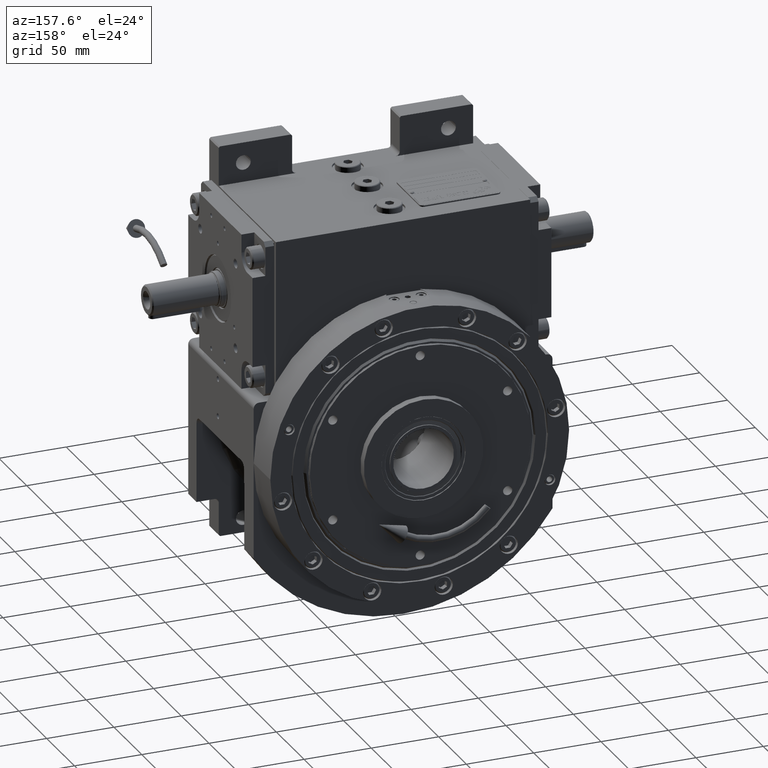
[diagram: clean part render]
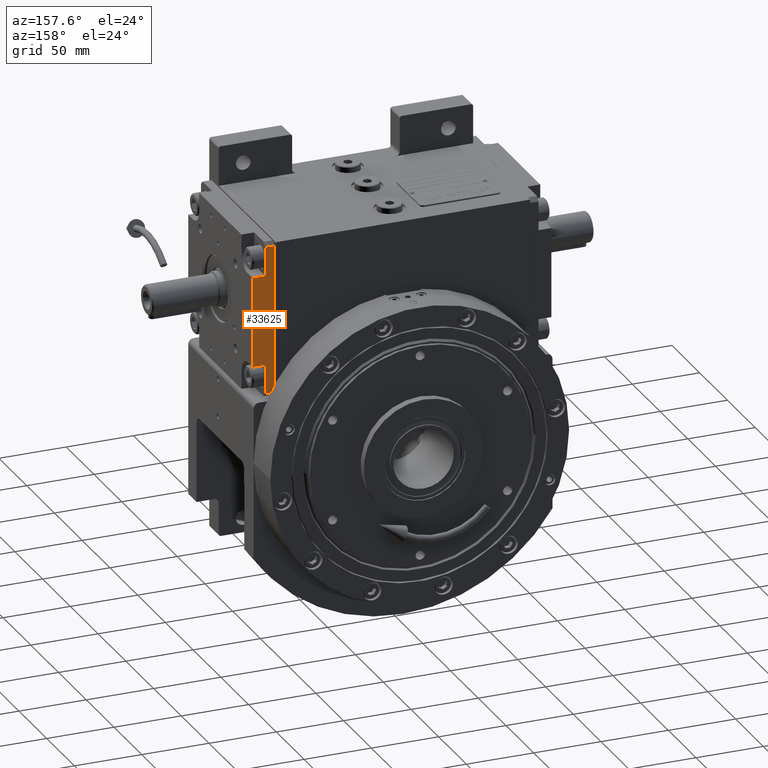
[diagram: same view with one face highlighted and labeled with its STEP entity id]
A machine part, auxiliary view. The second image highlights one B-rep face of the part: STEP entity #33625.
In plain terms, the highlighted planar face has unit normal (0, 1, -0).
Its self-contained STEP definition (entity closure, byte-faithful):
#1430 = CARTESIAN_POINT ( 'NONE',  ( 62.49999999999961631, -1.415534356397074589E-12, -54.99999999999953104 ) ) ;
#1986 = CARTESIAN_POINT ( 'NONE',  ( 62.49999999999961631, -1.415534356397074589E-12, -54.99999999999953104 ) ) ;
#3333 = EDGE_CURVE ( 'NONE', #51028, #4658, #53425, .T. ) ;
#3889 = VECTOR ( 'NONE', #50607, 1000.000000000000000 ) ;
#4509 = PLANE ( 'NONE',  #35038 ) ;
#4658 = VERTEX_POINT ( 'NONE', #34300 ) ;
#6009 = EDGE_CURVE ( 'NONE', #41414, #33704, #59254, .T. ) ;
#6123 = CARTESIAN_POINT ( 'NONE',  ( 62.50000000000046896, -1.415534356397074589E-12, 55.00000000000000711 ) ) ;
#9640 = CARTESIAN_POINT ( 'NONE',  ( 62.50000000000034817, -1.415534356397074589E-12, 58.00000000000000711 ) ) ;
#10150 = LINE ( 'NONE', #30750, #18077 ) ;
#11575 = EDGE_CURVE ( 'NONE', #34370, #51028, #46865, .T. ) ;
#13494 = CARTESIAN_POINT ( 'NONE',  ( 62.49999999999999289, -16.00000000000141753, -33.49999999999905498 ) ) ;
#14612 = EDGE_CURVE ( 'NONE', #53241, #4658, #21469, .T. ) ;
#14805 = DIRECTION ( 'NONE',  ( 1.000000000000000000, -2.076117056049037366E-14, -7.549516567451113384E-15 ) ) ;
#17634 = VERTEX_POINT ( 'NONE', #33985 ) ;
#18077 = VECTOR ( 'NONE', #41649, 1000.000000000000000 ) ;
#18415 = CARTESIAN_POINT ( 'NONE',  ( 62.50000000000069633, -16.00000000000141753, 33.50000000000001421 ) ) ;
#20048 = VECTOR ( 'NONE', #65164, 1000.000000000000000 ) ;
#21180 = ORIENTED_EDGE ( 'NONE', *, *, #11575, .F. ) ;
#21469 = LINE ( 'NONE', #42312, #26997 ) ;
#21915 = ORIENTED_EDGE ( 'NONE', *, *, #14612, .T. ) ;
#22343 = CARTESIAN_POINT ( 'NONE',  ( 62.50000000000061107, -6.500000000001421085, 55.00000000000000711 ) ) ;
#22344 = DIRECTION ( 'NONE',  ( 2.076117056049041784E-14, -1.000000000000000000, 1.887379141862907325E-15 ) ) ;
#22417 = EDGE_CURVE ( 'NONE', #33704, #53241, #60716, .T. ) ;
#22549 = ORIENTED_EDGE ( 'NONE', *, *, #6009, .T. ) ;
#23434 = CARTESIAN_POINT ( 'NONE',  ( 62.49999999999999289, -6.500000000001407763, -33.49999999999905498 ) ) ;
#26511 = EDGE_CURVE ( 'NONE', #34370, #37075, #10150, .T. ) ;
#26687 = VECTOR ( 'NONE', #27067, 1000.000000000000000 ) ;
#26997 = VECTOR ( 'NONE', #67295, 1000.000000000000000 ) ;
#27067 = DIRECTION ( 'NONE',  ( -7.549516567451073941E-15, 1.887379141862908114E-15, -1.000000000000000000 ) ) ;
#30750 = CARTESIAN_POINT ( 'NONE',  ( 62.50000000000046896, -1.415534356397074589E-12, 55.00000000000000711 ) ) ;
#31259 = DIRECTION ( 'NONE',  ( -7.549516567451073941E-15, 1.887379141862908114E-15, -1.000000000000000000 ) ) ;
#33157 = CARTESIAN_POINT ( 'NONE',  ( 62.50000000000046896, -1.415534356397074589E-12, 55.00000000000000711 ) ) ;
#33625 = ADVANCED_FACE ( 'NONE', ( #56188 ), #4509, .T. ) ;
#33704 = VERTEX_POINT ( 'NONE', #40461 ) ;
#33985 = CARTESIAN_POINT ( 'NONE',  ( 62.50000000000069633, -6.500000000001421085, 33.50000000000001421 ) ) ;
#34300 = CARTESIAN_POINT ( 'NONE',  ( 62.49999999999963762, -6.500000000001407763, -54.99999999999953104 ) ) ;
#34370 = VERTEX_POINT ( 'NONE', #33157 ) ;
#35038 = AXIS2_PLACEMENT_3D ( 'NONE', #9640, #14805, #31259 ) ;
#36900 = EDGE_CURVE ( 'NONE', #37075, #17634, #63674, .T. ) ;
#37075 = VERTEX_POINT ( 'NONE', #60593 ) ;
#38068 = DIRECTION ( 'NONE',  ( -7.549516567451073941E-15, 1.887379141862908114E-15, -1.000000000000000000 ) ) ;
#38412 = DIRECTION ( 'NONE',  ( -2.076117056049041784E-14, 1.000000000000000000, -1.887379141862907325E-15 ) ) ;
#40461 = CARTESIAN_POINT ( 'NONE',  ( 62.49999999999999289, -16.00000000000141753, -33.49999999999905498 ) ) ;
#40907 = VECTOR ( 'NONE', #22344, 1000.000000000000000 ) ;
#41414 = VERTEX_POINT ( 'NONE', #18415 ) ;
#41649 = DIRECTION ( 'NONE',  ( 2.076117056049041784E-14, -1.000000000000000000, 1.887379141862907325E-15 ) ) ;
#42312 = CARTESIAN_POINT ( 'NONE',  ( 62.49999999999999289, -6.500000000001407763, -33.49999999999905498 ) ) ;
#45035 = EDGE_LOOP ( 'NONE', ( #62447, #60165, #22549, #48701, #21915, #58905, #21180, #49954 ) ) ;
#46240 = VECTOR ( 'NONE', #38068, 1000.000000000000000 ) ;
#46426 = EDGE_CURVE ( 'NONE', #41414, #17634, #64380, .T. ) ;
#46865 = LINE ( 'NONE', #6123, #26687 ) ;
#48701 = ORIENTED_EDGE ( 'NONE', *, *, #22417, .T. ) ;
#48993 = CARTESIAN_POINT ( 'NONE',  ( 62.50000000000069633, -16.00000000000141753, 33.50000000000001421 ) ) ;
#49954 = ORIENTED_EDGE ( 'NONE', *, *, #26511, .T. ) ;
#50607 = DIRECTION ( 'NONE',  ( -7.549516567451073941E-15, 1.887379141862908114E-15, -1.000000000000000000 ) ) ;
#51028 = VERTEX_POINT ( 'NONE', #1986 ) ;
#53241 = VERTEX_POINT ( 'NONE', #23434 ) ;
#53425 = LINE ( 'NONE', #1430, #40907 ) ;
#53784 = CARTESIAN_POINT ( 'NONE',  ( 62.50000000000069633, -16.00000000000141753, 33.50000000000001421 ) ) ;
#56188 = FACE_OUTER_BOUND ( 'NONE', #45035, .T. ) ;
#58905 = ORIENTED_EDGE ( 'NONE', *, *, #3333, .F. ) ;
#58957 = VECTOR ( 'NONE', #38412, 1000.000000000000000 ) ;
#59254 = LINE ( 'NONE', #53784, #3889 ) ;
#60165 = ORIENTED_EDGE ( 'NONE', *, *, #46426, .F. ) ;
#60593 = CARTESIAN_POINT ( 'NONE',  ( 62.50000000000061107, -6.500000000001421085, 55.00000000000000711 ) ) ;
#60716 = LINE ( 'NONE', #13494, #20048 ) ;
#62447 = ORIENTED_EDGE ( 'NONE', *, *, #36900, .T. ) ;
#63674 = LINE ( 'NONE', #22343, #46240 ) ;
#64380 = LINE ( 'NONE', #48993, #58957 ) ;
#65164 = DIRECTION ( 'NONE',  ( -2.076117056049041784E-14, 1.000000000000000000, -1.887379141862907325E-15 ) ) ;
#67295 = DIRECTION ( 'NONE',  ( -7.549516567451073941E-15, 1.887379141862908114E-15, -1.000000000000000000 ) ) ;